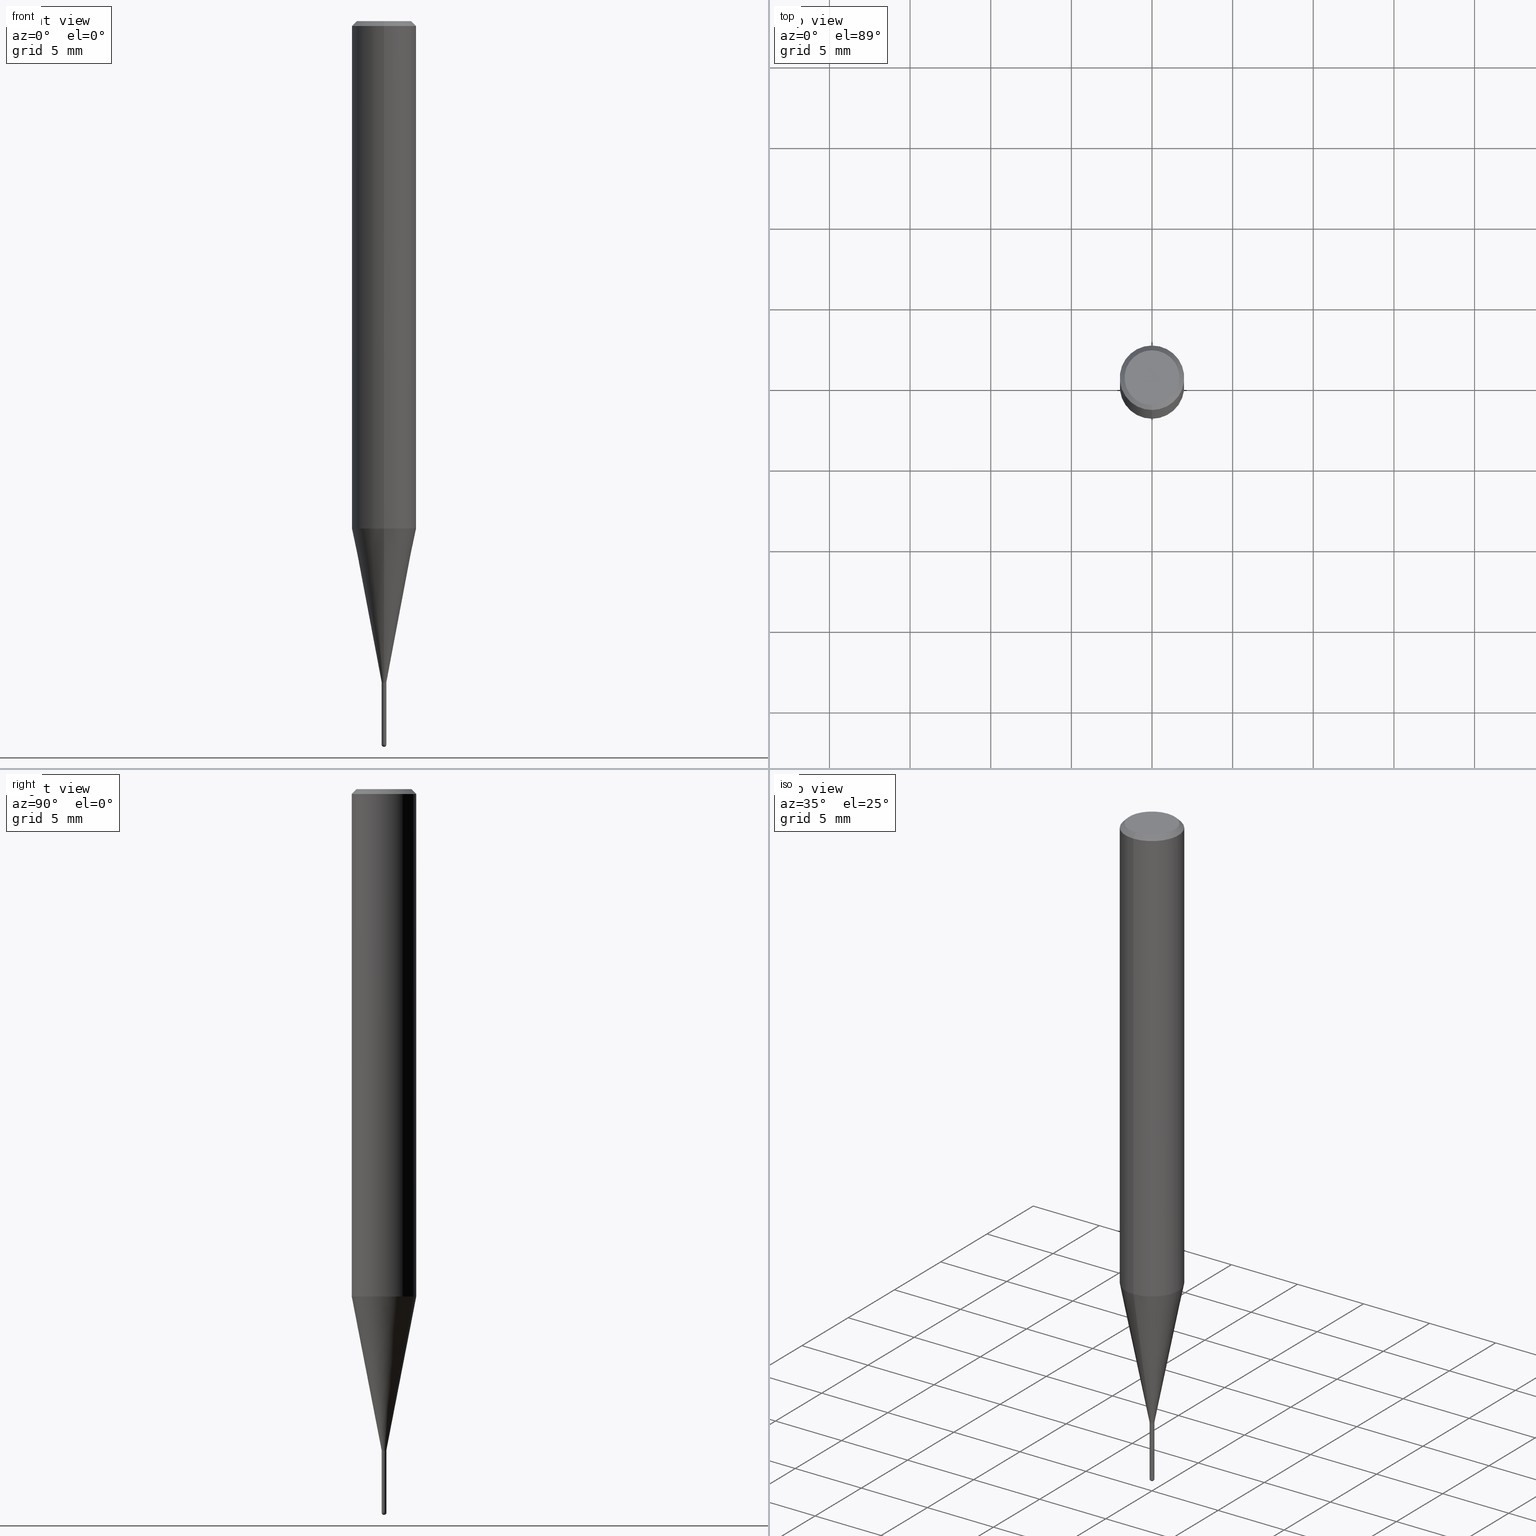
[diagram: canonical four-view strip — front | top / right | iso, engineering-drawing reading convention]
A machine part, canonical four-view strip (front | top / right | iso — engineering-drawing reading convention). The complete STEP part file that produces these views, byte-faithful:
ISO-10303-21;
HEADER;
FILE_DESCRIPTION(('no description'),'unknown implementation level');
FILE_NAME('CSELB2003-040-Huellk.stp','  ',('CIMSOURCE GmbH'),('CADClick - KiM GmbH - www.kimweb.de'),'unknown preprocess','ACIS','unknown authorization');
FILE_SCHEMA(('automotive_design'));
ENDSEC;
DATA;
#1=MECHANICAL_DESIGN_GEOMETRIC_PRESENTATION_REPRESENTATION(' ',(#14,#15,#16,#17,#18,#19,#20,#21,#22,#23,#24,#25,#26,#27,#28,#29,#30,#31,#32,#33,#34,#35,#36,#37,#38,#39,#40,#41,#42,#43,#44,#45,#46,#47,#48,#49,#50,#51,#52,#53,#54,#55,#56,#57,#58,#59,#60,#61,#62,#63,#64,#65,#66,#67,#68,#69,#70,#71,#72,#73,#74),#10);
#2=PRODUCT_DEFINITION_CONTEXT('',#75,'design');
#3=APPLICATION_PROTOCOL_DEFINITION('INTERNATIONAL STANDARD','automotive_design',1994,#75);
#4=PRODUCT_CATEGORY_RELATIONSHIP('NONE','NONE',#76,#77);
#5=SHAPE_DEFINITION_REPRESENTATION(#78,#79);
#6=PRODUCT_DEFINITION_CONTEXT('',#80,'design');
#7=APPLICATION_PROTOCOL_DEFINITION('INTERNATIONAL STANDARD','automotive_design',1994,#80);
#8=PRODUCT_CATEGORY_RELATIONSHIP('NONE','NONE',#81,#82);
#9=SHAPE_DEFINITION_REPRESENTATION(#83,#84);
#10= (GEOMETRIC_REPRESENTATION_CONTEXT(3)GLOBAL_UNCERTAINTY_ASSIGNED_CONTEXT((#87))GLOBAL_UNIT_ASSIGNED_CONTEXT((#89,#90,#91))REPRESENTATION_CONTEXT('NONE','WORKSPACE'));
#14=STYLED_ITEM('',(#93),#94);
#15=STYLED_ITEM('',(#95),#96);
#16=STYLED_ITEM('',(#97),#98);
#17=STYLED_ITEM('',(#99),#100);
#18=STYLED_ITEM('',(#101),#102);
#19=STYLED_ITEM('',(#103),#104);
#20=STYLED_ITEM('',(#105),#106);
#21=STYLED_ITEM('',(#107),#108);
#22=STYLED_ITEM('',(#109),#110);
#23=STYLED_ITEM('',(#111),#112);
#24=STYLED_ITEM('',(#113),#114);
#25=STYLED_ITEM('',(#115),#116);
#26=STYLED_ITEM('',(#117),#118);
#27=STYLED_ITEM('',(#119),#120);
#28=STYLED_ITEM('',(#121),#122);
#29=STYLED_ITEM('',(#123),#124);
#30=STYLED_ITEM('',(#125),#126);
#31=STYLED_ITEM('',(#127),#128);
#32=STYLED_ITEM('',(#129),#130);
#33=STYLED_ITEM('',(#131),#132);
#34=STYLED_ITEM('',(#133),#134);
#35=STYLED_ITEM('',(#135),#136);
#36=STYLED_ITEM('',(#137),#138);
#37=STYLED_ITEM('',(#139),#140);
#38=STYLED_ITEM('',(#141),#142);
#39=STYLED_ITEM('',(#143),#144);
#40=STYLED_ITEM('',(#145),#146);
#41=STYLED_ITEM('',(#147),#148);
#42=STYLED_ITEM('',(#149),#150);
#43=STYLED_ITEM('',(#151),#152);
#44=STYLED_ITEM('',(#153),#154);
#45=STYLED_ITEM('',(#155),#156);
#46=STYLED_ITEM('',(#157),#158);
#47=STYLED_ITEM('',(#159),#160);
#48=STYLED_ITEM('',(#161),#162);
#49=STYLED_ITEM('',(#163),#164);
#50=STYLED_ITEM('',(#165),#166);
#51=STYLED_ITEM('',(#167),#168);
#52=STYLED_ITEM('',(#169),#170);
#53=STYLED_ITEM('',(#171),#172);
#54=STYLED_ITEM('',(#173),#174);
#55=STYLED_ITEM('',(#175),#176);
#56=STYLED_ITEM('',(#177),#178);
#57=STYLED_ITEM('',(#179),#180);
#58=STYLED_ITEM('',(#181),#182);
#59=STYLED_ITEM('',(#183),#184);
#60=STYLED_ITEM('',(#185),#186);
#61=STYLED_ITEM('',(#187),#188);
#62=STYLED_ITEM('',(#189),#190);
#63=STYLED_ITEM('',(#191),#192);
#64=STYLED_ITEM('',(#193),#194);
#65=STYLED_ITEM('',(#195),#196);
#66=STYLED_ITEM('',(#197),#198);
#67=STYLED_ITEM('',(#199),#200);
#68=STYLED_ITEM('',(#201),#202);
#69=STYLED_ITEM('',(#203),#204);
#70=STYLED_ITEM('',(#205),#206);
#71=STYLED_ITEM('',(#207),#208);
#72=STYLED_ITEM('',(#209),#210);
#73=STYLED_ITEM('',(#211),#212);
#74=STYLED_ITEM('',(#213),#214);
#75=APPLICATION_CONTEXT(' ');
#76=PRODUCT_CATEGORY('part','NONE');
#77=PRODUCT_RELATED_PRODUCT_CATEGORY('detail',' ',(#215));
#78=PRODUCT_DEFINITION_SHAPE('NONE','NONE',#216);
#79=ADVANCED_BREP_SHAPE_REPRESENTATION('1',(#182,#217),#10);
#80=APPLICATION_CONTEXT(' ');
#81=PRODUCT_CATEGORY('part','NONE');
#82=PRODUCT_RELATED_PRODUCT_CATEGORY('detail',' ',(#218));
#83=PRODUCT_DEFINITION_SHAPE('NONE','NONE',#219);
#84=ADVANCED_BREP_SHAPE_REPRESENTATION('2',(#210,#220),#10);
#87=UNCERTAINTY_MEASURE_WITH_UNIT(LENGTH_MEASURE(1.0E-006),#89,'','');
#89= (CONVERSION_BASED_UNIT('MILLIMETRE',#223)LENGTH_UNIT()NAMED_UNIT(#226));
#90= (NAMED_UNIT(#228)PLANE_ANGLE_UNIT()SI_UNIT($,.RADIAN.));
#91= (NAMED_UNIT(#228)SOLID_ANGLE_UNIT()SI_UNIT($,.STERADIAN.));
#93=PRESENTATION_STYLE_ASSIGNMENT((#234));
#94=VERTEX_POINT('',#235);
#95=PRESENTATION_STYLE_ASSIGNMENT((#236));
#96=EDGE_CURVE('',#114,#148,#237,.T.);
#97=PRESENTATION_STYLE_ASSIGNMENT((#238));
#98=EDGE_CURVE('',#130,#148,#239,.T.);
#99=PRESENTATION_STYLE_ASSIGNMENT((#240));
#100=EDGE_CURVE('',#132,#186,#241,.T.);
#101=PRESENTATION_STYLE_ASSIGNMENT((#242));
#102=ADVANCED_FACE('',(#243),#244,.T.);
#103=PRESENTATION_STYLE_ASSIGNMENT((#245));
#104=EDGE_CURVE('',#198,#140,#246,.T.);
#105=PRESENTATION_STYLE_ASSIGNMENT((#247));
#106=VERTEX_POINT('',#248);
#107=PRESENTATION_STYLE_ASSIGNMENT((#249));
#108=ADVANCED_FACE('',(#250),#251,.T.);
#109=PRESENTATION_STYLE_ASSIGNMENT((#252));
#110=ADVANCED_FACE('',(#253,#254),#255,.T.);
#111=PRESENTATION_STYLE_ASSIGNMENT((#256));
#112=EDGE_CURVE('',#134,#184,#257,.T.);
#113=PRESENTATION_STYLE_ASSIGNMENT((#258));
#114=VERTEX_POINT('',#259);
#115=PRESENTATION_STYLE_ASSIGNMENT((#260));
#116=EDGE_CURVE('',#140,#198,#261,.T.);
#117=PRESENTATION_STYLE_ASSIGNMENT((#262));
#118=ADVANCED_FACE('',(#263),#264,.T.);
#119=PRESENTATION_STYLE_ASSIGNMENT((#265));
#120=EDGE_CURVE('',#114,#148,#266,.T.);
#121=PRESENTATION_STYLE_ASSIGNMENT((#267));
#122=EDGE_CURVE('',#148,#114,#268,.T.);
#123=PRESENTATION_STYLE_ASSIGNMENT((#269));
#124=ADVANCED_FACE('',(#270),#271,.T.);
#125=PRESENTATION_STYLE_ASSIGNMENT((#272));
#126=VERTEX_POINT('',#273);
#127=PRESENTATION_STYLE_ASSIGNMENT((#274));
#128=ADVANCED_FACE('',(#275),#276,.T.);
#129=PRESENTATION_STYLE_ASSIGNMENT((#277));
#130=VERTEX_POINT('',#278);
#131=PRESENTATION_STYLE_ASSIGNMENT((#279));
#132=VERTEX_POINT('',#280);
#133=PRESENTATION_STYLE_ASSIGNMENT((#281));
#134=VERTEX_POINT('',#282);
#135=PRESENTATION_STYLE_ASSIGNMENT((#283));
#136=EDGE_CURVE('',#126,#94,#284,.T.);
#137=PRESENTATION_STYLE_ASSIGNMENT((#285));
#138=EDGE_CURVE('',#146,#106,#286,.T.);
#139=PRESENTATION_STYLE_ASSIGNMENT((#287));
#140=VERTEX_POINT('',#288);
#141=PRESENTATION_STYLE_ASSIGNMENT((#289));
#142=EDGE_CURVE('',#194,#184,#290,.T.);
#143=PRESENTATION_STYLE_ASSIGNMENT((#291));
#144=EDGE_CURVE('',#106,#146,#292,.T.);
#145=PRESENTATION_STYLE_ASSIGNMENT((#293));
#146=VERTEX_POINT('',#294);
#147=PRESENTATION_STYLE_ASSIGNMENT((#295));
#148=VERTEX_POINT('',#296);
#149=PRESENTATION_STYLE_ASSIGNMENT((#297));
#150=EDGE_CURVE('',#186,#132,#298,.T.);
#151=PRESENTATION_STYLE_ASSIGNMENT((#299));
#152=EDGE_CURVE('',#140,#126,#300,.T.);
#153=PRESENTATION_STYLE_ASSIGNMENT((#301));
#154=EDGE_CURVE('',#126,#186,#302,.T.);
#155=PRESENTATION_STYLE_ASSIGNMENT((#303));
#156=ADVANCED_FACE('',(#304),#305,.T.);
#157=PRESENTATION_STYLE_ASSIGNMENT((#306));
#158=EDGE_CURVE('',#114,#188,#307,.T.);
#159=PRESENTATION_STYLE_ASSIGNMENT((#308));
#160=EDGE_CURVE('',#188,#130,#309,.T.);
#161=PRESENTATION_STYLE_ASSIGNMENT((#310));
#162=ADVANCED_FACE('',(#311),#312,.T.);
#163=PRESENTATION_STYLE_ASSIGNMENT((#313));
#164=EDGE_CURVE('',#130,#188,#314,.T.);
#165=PRESENTATION_STYLE_ASSIGNMENT((#315));
#166=EDGE_CURVE('',#94,#198,#316,.T.);
#167=PRESENTATION_STYLE_ASSIGNMENT((#317));
#168=ADVANCED_FACE('',(#318),#319,.T.);
#169=PRESENTATION_STYLE_ASSIGNMENT((#320));
#170=ADVANCED_FACE('',(#321),#322,.T.);
#171=PRESENTATION_STYLE_ASSIGNMENT((#323));
#172=ADVANCED_FACE('',(#324),#325,.T.);
#173=PRESENTATION_STYLE_ASSIGNMENT((#326));
#174=ADVANCED_FACE('',(#327),#328,.T.);
#175=PRESENTATION_STYLE_ASSIGNMENT((#329));
#176=EDGE_CURVE('',#202,#134,#330,.T.);
#177=PRESENTATION_STYLE_ASSIGNMENT((#331));
#178=EDGE_CURVE('',#194,#202,#332,.T.);
#179=PRESENTATION_STYLE_ASSIGNMENT((#333));
#180=EDGE_CURVE('',#184,#194,#334,.T.);
#181=PRESENTATION_STYLE_ASSIGNMENT((#335));
#182=MANIFOLD_SOLID_BREP('1',#336);
#183=PRESENTATION_STYLE_ASSIGNMENT((#337));
#184=VERTEX_POINT('',#338);
#185=PRESENTATION_STYLE_ASSIGNMENT((#339));
#186=VERTEX_POINT('',#340);
#187=PRESENTATION_STYLE_ASSIGNMENT((#341));
#188=VERTEX_POINT('',#342);
#189=PRESENTATION_STYLE_ASSIGNMENT((#343));
#190=ADVANCED_FACE('',(#344),#345,.T.);
#191=PRESENTATION_STYLE_ASSIGNMENT((#346));
#192=ADVANCED_FACE('',(#347),#348,.T.);
#193=PRESENTATION_STYLE_ASSIGNMENT((#349));
#194=VERTEX_POINT('',#350);
#195=PRESENTATION_STYLE_ASSIGNMENT((#351));
#196=EDGE_CURVE('',#202,#146,#352,.T.);
#197=PRESENTATION_STYLE_ASSIGNMENT((#353));
#198=VERTEX_POINT('',#354);
#199=PRESENTATION_STYLE_ASSIGNMENT((#355));
#200=EDGE_CURVE('',#94,#126,#356,.T.);
#201=PRESENTATION_STYLE_ASSIGNMENT((#357));
#202=VERTEX_POINT('',#358);
#203=PRESENTATION_STYLE_ASSIGNMENT((#359));
#204=EDGE_CURVE('',#134,#202,#360,.T.);
#205=PRESENTATION_STYLE_ASSIGNMENT((#361));
#206=ADVANCED_FACE('',(#362),#363,.T.);
#207=PRESENTATION_STYLE_ASSIGNMENT((#364));
#208=EDGE_CURVE('',#106,#134,#365,.T.);
#209=PRESENTATION_STYLE_ASSIGNMENT((#366));
#210=MANIFOLD_SOLID_BREP('2',#367);
#211=PRESENTATION_STYLE_ASSIGNMENT((#368));
#212=ADVANCED_FACE('',(#369),#370,.T.);
#213=PRESENTATION_STYLE_ASSIGNMENT((#371));
#214=EDGE_CURVE('',#132,#94,#372,.T.);
#215=PRODUCT('1','1','PART-1-DESC',(#373));
#216=PRODUCT_DEFINITION('NONE','NONE',#374,#2);
#217=AXIS2_PLACEMENT_3D('',#375,#376,#377);
#218=PRODUCT('2','2','PART-2-DESC',(#378));
#219=PRODUCT_DEFINITION('NONE','NONE',#379,#6);
#220=AXIS2_PLACEMENT_3D('',#380,#381,#382);
#223=LENGTH_MEASURE_WITH_UNIT(LENGTH_MEASURE(1.0),#383);
#226=DIMENSIONAL_EXPONENTS(1.0,0.0,0.0,0.0,0.0,0.0,0.0);
#228=DIMENSIONAL_EXPONENTS(0.0,0.0,0.0,0.0,0.0,0.0,0.0);
#234=POINT_STYLE(' ',#384,POSITIVE_LENGTH_MEASURE(1.0E-006),#385);
#235=CARTESIAN_POINT('',(0.0,0.14495,-41.0));
#236=CURVE_STYLE('',#386,POSITIVE_LENGTH_MEASURE(1.0E-006),#387);
#237=CIRCLE('',#388,0.15);
#238=CURVE_STYLE('',#389,POSITIVE_LENGTH_MEASURE(1.0E-006),#390);
#239=LINE('',#391,#392);
#240=CURVE_STYLE('',#393,POSITIVE_LENGTH_MEASURE(1.0E-006),#394);
#241=CIRCLE('',#395,1.99995);
#242=SURFACE_STYLE_USAGE(.BOTH.,#396);
#243=FACE_OUTER_BOUND('',#397,.T.);
#244=PLANE('',#398);
#245=CURVE_STYLE('',#399,POSITIVE_LENGTH_MEASURE(1.0E-006),#400);
#246=CIRCLE('',#401,0.14495);
#247=POINT_STYLE(' ',#402,POSITIVE_LENGTH_MEASURE(1.0E-006),#403);
#248=CARTESIAN_POINT('',(2.44921270764475E-016,-2.0,-31.457));
#249=SURFACE_STYLE_USAGE(.BOTH.,#404);
#250=FACE_OUTER_BOUND('',#405,.T.);
#251=CYLINDRICAL_SURFACE('',#406,0.14495);
#252=SURFACE_STYLE_USAGE(.BOTH.,#407);
#253=FACE_OUTER_BOUND('',#408,.T.);
#254=FACE_BOUND('',#409,.T.);
#255=PLANE('',#410);
#256=CURVE_STYLE('',#411,POSITIVE_LENGTH_MEASURE(1.0E-006),#412);
#257=LINE('',#413,#414);
#258=POINT_STYLE(' ',#415,POSITIVE_LENGTH_MEASURE(1.0E-006),#416);
#259=CARTESIAN_POINT('',(1.83690953073356E-017,-0.15,-44.85));
#260=CURVE_STYLE('',#417,POSITIVE_LENGTH_MEASURE(1.0E-006),#418);
#261=CIRCLE('',#419,0.14495);
#262=SURFACE_STYLE_USAGE(.BOTH.,#420);
#263=FACE_OUTER_BOUND('',#421,.T.);
#264=PLANE('',#422);
#265=CURVE_STYLE('',#423,POSITIVE_LENGTH_MEASURE(1.0E-006),#424);
#266=CIRCLE('',#425,0.15);
#267=CURVE_STYLE('',#426,POSITIVE_LENGTH_MEASURE(1.0E-006),#427);
#268=CIRCLE('',#428,0.15);
#269=SURFACE_STYLE_USAGE(.BOTH.,#429);
#270=FACE_OUTER_BOUND('',#430,.T.);
#271=CYLINDRICAL_SURFACE('',#431,2.0);
#272=POINT_STYLE(' ',#432,POSITIVE_LENGTH_MEASURE(1.0E-006),#433);
#273=CARTESIAN_POINT('',(1.77506690986554E-017,-0.14495,-41.0));
#274=SURFACE_STYLE_USAGE(.BOTH.,#434);
#275=FACE_OUTER_BOUND('',#435,.T.);
#276=CYLINDRICAL_SURFACE('',#436,0.14495);
#277=POINT_STYLE(' ',#437,POSITIVE_LENGTH_MEASURE(1.0E-006),#438);
#278=CARTESIAN_POINT('',(0.0,0.1499,-44.76));
#279=POINT_STYLE(' ',#439,POSITIVE_LENGTH_MEASURE(1.0E-006),#440);
#280=CARTESIAN_POINT('',(0.0,1.99995,-31.457));
#281=POINT_STYLE(' ',#441,POSITIVE_LENGTH_MEASURE(1.0E-006),#442);
#282=CARTESIAN_POINT('',(2.44921270764475E-016,-2.0,-0.300000000000001));
#283=CURVE_STYLE('',#443,POSITIVE_LENGTH_MEASURE(1.0E-006),#444);
#284=CIRCLE('',#445,0.14495);
#285=CURVE_STYLE('',#446,POSITIVE_LENGTH_MEASURE(1.0E-006),#447);
#286=CIRCLE('',#448,2.0);
#287=POINT_STYLE(' ',#449,POSITIVE_LENGTH_MEASURE(1.0E-006),#450);
#288=CARTESIAN_POINT('',(1.77506690986554E-017,-0.14495,-44.76));
#289=CURVE_STYLE('',#451,POSITIVE_LENGTH_MEASURE(1.0E-006),#452);
#290=CIRCLE('',#453,1.7);
#291=CURVE_STYLE('',#454,POSITIVE_LENGTH_MEASURE(1.0E-006),#455);
#292=CIRCLE('',#456,2.0);
#293=POINT_STYLE(' ',#457,POSITIVE_LENGTH_MEASURE(1.0E-006),#458);
#294=CARTESIAN_POINT('',(0.0,2.0,-31.457));
#295=POINT_STYLE(' ',#459,POSITIVE_LENGTH_MEASURE(1.0E-006),#460);
#296=CARTESIAN_POINT('',(0.0,0.15,-44.85));
#297=CURVE_STYLE('',#461,POSITIVE_LENGTH_MEASURE(1.0E-006),#462);
#298=CIRCLE('',#463,1.99995);
#299=CURVE_STYLE('',#464,POSITIVE_LENGTH_MEASURE(1.0E-006),#465);
#300=LINE('',#466,#467);
#301=CURVE_STYLE('',#468,POSITIVE_LENGTH_MEASURE(1.0E-006),#469);
#302=LINE('',#470,#471);
#303=SURFACE_STYLE_USAGE(.BOTH.,#472);
#304=FACE_OUTER_BOUND('',#473,.T.);
#305=CYLINDRICAL_SURFACE('',#474,2.0);
#306=CURVE_STYLE('',#475,POSITIVE_LENGTH_MEASURE(1.0E-006),#476);
#307=LINE('',#477,#478);
#308=CURVE_STYLE('',#479,POSITIVE_LENGTH_MEASURE(1.0E-006),#480);
#309=CIRCLE('',#481,0.1499);
#310=SURFACE_STYLE_USAGE(.BOTH.,#482);
#311=FACE_OUTER_BOUND('',#483,.T.);
#312=SPHERICAL_SURFACE('',#484,0.15);
#313=CURVE_STYLE('',#485,POSITIVE_LENGTH_MEASURE(1.0E-006),#486);
#314=CIRCLE('',#487,0.1499);
#315=CURVE_STYLE('',#488,POSITIVE_LENGTH_MEASURE(1.0E-006),#489);
#316=LINE('',#490,#491);
#317=SURFACE_STYLE_USAGE(.BOTH.,#492);
#318=FACE_OUTER_BOUND('',#493,.T.);
#319=PLANE('',#494);
#320=SURFACE_STYLE_USAGE(.BOTH.,#495);
#321=FACE_OUTER_BOUND('',#496,.T.);
#322=CONICAL_SURFACE('',#497,1.07245,0.19198911666217);
#323=SURFACE_STYLE_USAGE(.BOTH.,#498);
#324=FACE_OUTER_BOUND('',#499,.T.);
#325=CONICAL_SURFACE('',#500,1.85,0.785398163397447);
#326=SURFACE_STYLE_USAGE(.BOTH.,#501);
#327=FACE_OUTER_BOUND('',#502,.T.);
#328=CONICAL_SURFACE('',#503,1.85,0.785398163397447);
#329=CURVE_STYLE('',#504,POSITIVE_LENGTH_MEASURE(1.0E-006),#505);
#330=CIRCLE('',#506,2.0);
#331=CURVE_STYLE('',#507,POSITIVE_LENGTH_MEASURE(1.0E-006),#508);
#332=LINE('',#509,#510);
#333=CURVE_STYLE('',#511,POSITIVE_LENGTH_MEASURE(1.0E-006),#512);
#334=CIRCLE('',#513,1.7);
#335=SURFACE_STYLE_USAGE(.BOTH.,#514);
#336=CLOSED_SHELL('',(#128,#190,#124,#172,#110,#118,#174,#156,#170,#108,#168));
#337=POINT_STYLE(' ',#515,POSITIVE_LENGTH_MEASURE(1.0E-006),#516);
#338=CARTESIAN_POINT('',(2.08183080149804E-016,-1.7,0.0));
#339=POINT_STYLE(' ',#517,POSITIVE_LENGTH_MEASURE(1.0E-006),#518);
#340=CARTESIAN_POINT('',(2.44915147732706E-016,-1.99995,-31.457));
#341=POINT_STYLE(' ',#519,POSITIVE_LENGTH_MEASURE(1.0E-006),#520);
#342=CARTESIAN_POINT('',(1.83568492437974E-017,-0.1499,-44.76));
#343=SURFACE_STYLE_USAGE(.BOTH.,#521);
#344=FACE_OUTER_BOUND('',#522,.T.);
#345=CONICAL_SURFACE('',#523,1.07245,0.19198911666217);
#346=SURFACE_STYLE_USAGE(.BOTH.,#524);
#347=FACE_OUTER_BOUND('',#525,.T.);
#348=CONICAL_SURFACE('',#526,0.14995,0.00111111065386396);
#349=POINT_STYLE(' ',#527,POSITIVE_LENGTH_MEASURE(1.0E-006),#528);
#350=CARTESIAN_POINT('',(0.0,1.7,0.0));
#351=CURVE_STYLE('',#529,POSITIVE_LENGTH_MEASURE(1.0E-006),#530);
#352=LINE('',#531,#532);
#353=POINT_STYLE(' ',#533,POSITIVE_LENGTH_MEASURE(1.0E-006),#534);
#354=CARTESIAN_POINT('',(0.0,0.14495,-44.76));
#355=CURVE_STYLE('',#535,POSITIVE_LENGTH_MEASURE(1.0E-006),#536);
#356=CIRCLE('',#537,0.14495);
#357=POINT_STYLE(' ',#538,POSITIVE_LENGTH_MEASURE(1.0E-006),#539);
#358=CARTESIAN_POINT('',(0.0,2.0,-0.300000000000001));
#359=CURVE_STYLE('',#540,POSITIVE_LENGTH_MEASURE(1.0E-006),#541);
#360=CIRCLE('',#542,2.0);
#361=SURFACE_STYLE_USAGE(.BOTH.,#543);
#362=FACE_OUTER_BOUND('',#544,.T.);
#363=SPHERICAL_SURFACE('',#545,0.15);
#364=CURVE_STYLE('',#546,POSITIVE_LENGTH_MEASURE(1.0E-006),#547);
#365=LINE('',#548,#549);
#366=SURFACE_STYLE_USAGE(.BOTH.,#550);
#367=CLOSED_SHELL('',(#206,#192,#102,#212,#162));
#368=SURFACE_STYLE_USAGE(.BOTH.,#551);
#369=FACE_OUTER_BOUND('',#552,.T.);
#370=CONICAL_SURFACE('',#553,0.14995,0.00111111065386396);
#371=CURVE_STYLE('',#554,POSITIVE_LENGTH_MEASURE(1.0E-006),#555);
#372=LINE('',#556,#557);
#373=PRODUCT_CONTEXT('',#75,'mechanical');
#374=PRODUCT_DEFINITION_FORMATION_WITH_SPECIFIED_SOURCE(' ','NONE',#215,.NOT_KNOWN.);
#375=CARTESIAN_POINT('',(0.0,0.0,0.0));
#376=DIRECTION('',(0.0,0.0,1.0));
#377=DIRECTION('',(1.0,0.0,0.0));
#378=PRODUCT_CONTEXT('',#80,'mechanical');
#379=PRODUCT_DEFINITION_FORMATION_WITH_SPECIFIED_SOURCE(' ','NONE',#218,.NOT_KNOWN.);
#380=CARTESIAN_POINT('',(0.0,0.0,0.0));
#381=DIRECTION('',(0.0,0.0,1.0));
#382=DIRECTION('',(1.0,0.0,0.0));
#383= (NAMED_UNIT(#226)LENGTH_UNIT()SI_UNIT(.MILLI.,.METRE.));
#384=PRE_DEFINED_MARKER('');
#385=COLOUR_RGB('',0.498039215803146,0.498039215803146,0.498039215803146);
#386=DRAUGHTING_PRE_DEFINED_CURVE_FONT('continuous');
#387=COLOUR_RGB('',0.800000011920929,0.800000011920929,0.800000011920929);
#388=AXIS2_PLACEMENT_3D('',#559,#560,#561);
#389=DRAUGHTING_PRE_DEFINED_CURVE_FONT('continuous');
#390=COLOUR_RGB('',0.800000011920929,0.800000011920929,0.800000011920929);
#391=CARTESIAN_POINT('',(-1.83629722755665E-017,0.14995,-44.805));
#392=VECTOR('',#562,1.0);
#393=DRAUGHTING_PRE_DEFINED_CURVE_FONT('continuous');
#394=COLOUR_RGB('',0.498039215803146,0.498039215803146,0.498039215803146);
#395=AXIS2_PLACEMENT_3D('',#563,#564,#565);
#396=SURFACE_SIDE_STYLE('',(#566));
#397=EDGE_LOOP('',(#567,#568));
#398=AXIS2_PLACEMENT_3D('',#569,#570,#571);
#399=DRAUGHTING_PRE_DEFINED_CURVE_FONT('continuous');
#400=COLOUR_RGB('',0.498039215803146,0.498039215803146,0.498039215803146);
#401=AXIS2_PLACEMENT_3D('',#572,#573,#574);
#402=PRE_DEFINED_MARKER('');
#403=COLOUR_RGB('',0.498039215803146,0.498039215803146,0.498039215803146);
#404=SURFACE_SIDE_STYLE('',(#575));
#405=EDGE_LOOP('',(#576,#577,#578,#579));
#406=AXIS2_PLACEMENT_3D('',#580,#581,#582);
#407=SURFACE_SIDE_STYLE('',(#583));
#408=EDGE_LOOP('',(#584,#585));
#409=EDGE_LOOP('',(#586,#587));
#410=AXIS2_PLACEMENT_3D('',#588,#589,#590);
#411=DRAUGHTING_PRE_DEFINED_CURVE_FONT('continuous');
#412=COLOUR_RGB('',0.498039215803146,0.498039215803146,0.498039215803146);
#413=CARTESIAN_POINT('',(2.2655217545714E-016,-1.85,-0.149999999999999));
#414=VECTOR('',#591,1.0);
#415=PRE_DEFINED_MARKER('');
#416=COLOUR_RGB('',0.800000011920929,0.800000011920929,0.800000011920929);
#417=DRAUGHTING_PRE_DEFINED_CURVE_FONT('continuous');
#418=COLOUR_RGB('',0.498039215803146,0.498039215803146,0.498039215803146);
#419=AXIS2_PLACEMENT_3D('',#592,#593,#594);
#420=SURFACE_SIDE_STYLE('',(#595));
#421=EDGE_LOOP('',(#596,#597));
#422=AXIS2_PLACEMENT_3D('',#598,#599,#600);
#423=DRAUGHTING_PRE_DEFINED_CURVE_FONT('continuous');
#424=COLOUR_RGB('',0.800000011920929,0.800000011920929,0.800000011920929);
#425=AXIS2_PLACEMENT_3D('',#601,#602,#603);
#426=DRAUGHTING_PRE_DEFINED_CURVE_FONT('continuous');
#427=COLOUR_RGB('',0.800000011920929,0.800000011920929,0.800000011920929);
#428=AXIS2_PLACEMENT_3D('',#604,#605,#606);
#429=SURFACE_SIDE_STYLE('',(#607));
#430=EDGE_LOOP('',(#608,#609,#610,#611));
#431=AXIS2_PLACEMENT_3D('',#612,#613,#614);
#432=PRE_DEFINED_MARKER('');
#433=COLOUR_RGB('',0.498039215803146,0.498039215803146,0.498039215803146);
#434=SURFACE_SIDE_STYLE('',(#615));
#435=EDGE_LOOP('',(#616,#617,#618,#619));
#436=AXIS2_PLACEMENT_3D('',#620,#621,#622);
#437=PRE_DEFINED_MARKER('');
#438=COLOUR_RGB('',0.800000011920929,0.800000011920929,0.800000011920929);
#439=PRE_DEFINED_MARKER('');
#440=COLOUR_RGB('',0.498039215803146,0.498039215803146,0.498039215803146);
#441=PRE_DEFINED_MARKER('');
#442=COLOUR_RGB('',0.498039215803146,0.498039215803146,0.498039215803146);
#443=DRAUGHTING_PRE_DEFINED_CURVE_FONT('continuous');
#444=COLOUR_RGB('',0.498039215803146,0.498039215803146,0.498039215803146);
#445=AXIS2_PLACEMENT_3D('',#623,#624,#625);
#446=DRAUGHTING_PRE_DEFINED_CURVE_FONT('continuous');
#447=COLOUR_RGB('',0.498039215803146,0.498039215803146,0.498039215803146);
#448=AXIS2_PLACEMENT_3D('',#626,#627,#628);
#449=PRE_DEFINED_MARKER('');
#450=COLOUR_RGB('',0.498039215803146,0.498039215803146,0.498039215803146);
#451=DRAUGHTING_PRE_DEFINED_CURVE_FONT('continuous');
#452=COLOUR_RGB('',0.498039215803146,0.498039215803146,0.498039215803146);
#453=AXIS2_PLACEMENT_3D('',#629,#630,#631);
#454=DRAUGHTING_PRE_DEFINED_CURVE_FONT('continuous');
#455=COLOUR_RGB('',0.498039215803146,0.498039215803146,0.498039215803146);
#456=AXIS2_PLACEMENT_3D('',#632,#633,#634);
#457=PRE_DEFINED_MARKER('');
#458=COLOUR_RGB('',0.498039215803146,0.498039215803146,0.498039215803146);
#459=PRE_DEFINED_MARKER('');
#460=COLOUR_RGB('',0.800000011920929,0.800000011920929,0.800000011920929);
#461=DRAUGHTING_PRE_DEFINED_CURVE_FONT('continuous');
#462=COLOUR_RGB('',0.498039215803146,0.498039215803146,0.498039215803146);
#463=AXIS2_PLACEMENT_3D('',#635,#636,#637);
#464=DRAUGHTING_PRE_DEFINED_CURVE_FONT('continuous');
#465=COLOUR_RGB('',0.498039215803146,0.498039215803146,0.498039215803146);
#466=CARTESIAN_POINT('',(1.77506690986554E-017,-0.14495,-42.88));
#467=VECTOR('',#638,1.0);
#468=DRAUGHTING_PRE_DEFINED_CURVE_FONT('continuous');
#469=COLOUR_RGB('',0.498039215803146,0.498039215803146,0.498039215803146);
#470=CARTESIAN_POINT('',(1.31332908415681E-016,-1.07245,-36.2285));
#471=VECTOR('',#639,1.0);
#472=SURFACE_SIDE_STYLE('',(#640));
#473=EDGE_LOOP('',(#641,#642,#643,#644));
#474=AXIS2_PLACEMENT_3D('',#645,#646,#647);
#475=DRAUGHTING_PRE_DEFINED_CURVE_FONT('continuous');
#476=COLOUR_RGB('',0.800000011920929,0.800000011920929,0.800000011920929);
#477=CARTESIAN_POINT('',(1.83629722755665E-017,-0.14995,-44.805));
#478=VECTOR('',#648,1.0);
#479=DRAUGHTING_PRE_DEFINED_CURVE_FONT('continuous');
#480=COLOUR_RGB('',0.800000011920929,0.800000011920929,0.800000011920929);
#481=AXIS2_PLACEMENT_3D('',#649,#650,#651);
#482=SURFACE_SIDE_STYLE('',(#652));
#483=EDGE_LOOP('',(#653,#654));
#484=AXIS2_PLACEMENT_3D('',#655,#656,#657);
#485=DRAUGHTING_PRE_DEFINED_CURVE_FONT('continuous');
#486=COLOUR_RGB('',0.800000011920929,0.800000011920929,0.800000011920929);
#487=AXIS2_PLACEMENT_3D('',#658,#659,#660);
#488=DRAUGHTING_PRE_DEFINED_CURVE_FONT('continuous');
#489=COLOUR_RGB('',0.498039215803146,0.498039215803146,0.498039215803146);
#490=CARTESIAN_POINT('',(-1.77506690986554E-017,0.14495,-42.88));
#491=VECTOR('',#661,1.0);
#492=SURFACE_SIDE_STYLE('',(#662));
#493=EDGE_LOOP('',(#663,#664));
#494=AXIS2_PLACEMENT_3D('',#665,#666,#667);
#495=SURFACE_SIDE_STYLE('',(#668));
#496=EDGE_LOOP('',(#669,#670,#671,#672));
#497=AXIS2_PLACEMENT_3D('',#673,#674,#675);
#498=SURFACE_SIDE_STYLE('',(#676));
#499=EDGE_LOOP('',(#677,#678,#679,#680));
#500=AXIS2_PLACEMENT_3D('',#681,#682,#683);
#501=SURFACE_SIDE_STYLE('',(#684));
#502=EDGE_LOOP('',(#685,#686,#687,#688));
#503=AXIS2_PLACEMENT_3D('',#689,#690,#691);
#504=DRAUGHTING_PRE_DEFINED_CURVE_FONT('continuous');
#505=COLOUR_RGB('',0.498039215803146,0.498039215803146,0.498039215803146);
#506=AXIS2_PLACEMENT_3D('',#692,#693,#694);
#507=DRAUGHTING_PRE_DEFINED_CURVE_FONT('continuous');
#508=COLOUR_RGB('',0.498039215803146,0.498039215803146,0.498039215803146);
#509=CARTESIAN_POINT('',(-2.2655217545714E-016,1.85,-0.149999999999999));
#510=VECTOR('',#695,1.0);
#511=DRAUGHTING_PRE_DEFINED_CURVE_FONT('continuous');
#512=COLOUR_RGB('',0.498039215803146,0.498039215803146,0.498039215803146);
#513=AXIS2_PLACEMENT_3D('',#696,#697,#698);
#514=SURFACE_SIDE_STYLE('',(#699));
#515=PRE_DEFINED_MARKER('');
#516=COLOUR_RGB('',0.498039215803146,0.498039215803146,0.498039215803146);
#517=PRE_DEFINED_MARKER('');
#518=COLOUR_RGB('',0.498039215803146,0.498039215803146,0.498039215803146);
#519=PRE_DEFINED_MARKER('');
#520=COLOUR_RGB('',0.800000011920929,0.800000011920929,0.800000011920929);
#521=SURFACE_SIDE_STYLE('',(#700));
#522=EDGE_LOOP('',(#701,#702,#703,#704));
#523=AXIS2_PLACEMENT_3D('',#705,#706,#707);
#524=SURFACE_SIDE_STYLE('',(#708));
#525=EDGE_LOOP('',(#709,#710,#711,#712));
#526=AXIS2_PLACEMENT_3D('',#713,#714,#715);
#527=PRE_DEFINED_MARKER('');
#528=COLOUR_RGB('',0.498039215803146,0.498039215803146,0.498039215803146);
#529=DRAUGHTING_PRE_DEFINED_CURVE_FONT('continuous');
#530=COLOUR_RGB('',0.498039215803146,0.498039215803146,0.498039215803146);
#531=CARTESIAN_POINT('',(-2.44921270764475E-016,2.0,-15.8785));
#532=VECTOR('',#716,1.0);
#533=PRE_DEFINED_MARKER('');
#534=COLOUR_RGB('',0.498039215803146,0.498039215803146,0.498039215803146);
#535=DRAUGHTING_PRE_DEFINED_CURVE_FONT('continuous');
#536=COLOUR_RGB('',0.498039215803146,0.498039215803146,0.498039215803146);
#537=AXIS2_PLACEMENT_3D('',#717,#718,#719);
#538=PRE_DEFINED_MARKER('');
#539=COLOUR_RGB('',0.498039215803146,0.498039215803146,0.498039215803146);
#540=DRAUGHTING_PRE_DEFINED_CURVE_FONT('continuous');
#541=COLOUR_RGB('',0.498039215803146,0.498039215803146,0.498039215803146);
#542=AXIS2_PLACEMENT_3D('',#720,#721,#722);
#543=SURFACE_SIDE_STYLE('',(#723));
#544=EDGE_LOOP('',(#724,#725));
#545=AXIS2_PLACEMENT_3D('',#726,#727,#728);
#546=DRAUGHTING_PRE_DEFINED_CURVE_FONT('continuous');
#547=COLOUR_RGB('',0.498039215803146,0.498039215803146,0.498039215803146);
#548=CARTESIAN_POINT('',(2.44921270764475E-016,-2.0,-15.8785));
#549=VECTOR('',#729,1.0);
#550=SURFACE_SIDE_STYLE('',(#730));
#551=SURFACE_SIDE_STYLE('',(#731));
#552=EDGE_LOOP('',(#732,#733,#734,#735));
#553=AXIS2_PLACEMENT_3D('',#736,#737,#738);
#554=DRAUGHTING_PRE_DEFINED_CURVE_FONT('continuous');
#555=COLOUR_RGB('',0.498039215803146,0.498039215803146,0.498039215803146);
#556=CARTESIAN_POINT('',(-1.31332908415681E-016,1.07245,-36.2285));
#557=VECTOR('',#739,1.0);
#559=CARTESIAN_POINT('',(0.0,0.0,-44.85));
#560=DIRECTION('',(1.0,0.0,1.22460635382239E-016));
#561=DIRECTION('',(-1.22460635382239E-016,0.0,1.0));
#562=DIRECTION('',(-1.36067288654788E-019,0.00111111042524057,-0.999999382716621));
#563=CARTESIAN_POINT('',(0.0,0.0,-31.457));
#564=DIRECTION('',(0.0,0.0,-1.0));
#565=DIRECTION('',(0.0,1.0,0.0));
#566=SURFACE_STYLE_FILL_AREA(#740);
#567=ORIENTED_EDGE('',*,*,#164,.F.);
#568=ORIENTED_EDGE('',*,*,#160,.F.);
#569=CARTESIAN_POINT('',(0.0,0.07495,-44.76));
#570=DIRECTION('',(-0.0,0.0,1.0));
#571=DIRECTION('',(0.0,-1.0,0.0));
#572=CARTESIAN_POINT('',(0.0,0.0,-44.76));
#573=DIRECTION('',(0.0,0.0,-1.0));
#574=DIRECTION('',(0.0,1.0,0.0));
#575=SURFACE_STYLE_FILL_AREA(#741);
#576=ORIENTED_EDGE('',*,*,#166,.T.);
#577=ORIENTED_EDGE('',*,*,#116,.F.);
#578=ORIENTED_EDGE('',*,*,#152,.T.);
#579=ORIENTED_EDGE('',*,*,#136,.T.);
#580=CARTESIAN_POINT('',(0.0,0.0,-42.88));
#581=DIRECTION('',(-0.0,-0.0,1.0));
#582=DIRECTION('',(0.0,1.0,0.0));
#583=SURFACE_STYLE_FILL_AREA(#742);
#584=ORIENTED_EDGE('',*,*,#138,.T.);
#585=ORIENTED_EDGE('',*,*,#144,.T.);
#586=ORIENTED_EDGE('',*,*,#100,.F.);
#587=ORIENTED_EDGE('',*,*,#150,.F.);
#588=CARTESIAN_POINT('',(0.0,1.0,-31.457));
#589=DIRECTION('',(0.0,0.0,-1.0));
#590=DIRECTION('',(0.0,1.0,0.0));
#591=DIRECTION('',(-8.65927457071934E-017,0.707106781186546,0.707106781186549));
#592=CARTESIAN_POINT('',(0.0,0.0,-44.76));
#593=DIRECTION('',(0.0,0.0,-1.0));
#594=DIRECTION('',(0.0,1.0,0.0));
#595=SURFACE_STYLE_FILL_AREA(#743);
#596=ORIENTED_EDGE('',*,*,#142,.F.);
#597=ORIENTED_EDGE('',*,*,#180,.F.);
#598=CARTESIAN_POINT('',(0.0,0.85,0.0));
#599=DIRECTION('',(-0.0,0.0,1.0));
#600=DIRECTION('',(0.0,-1.0,0.0));
#601=CARTESIAN_POINT('',(0.0,0.0,-44.85));
#602=DIRECTION('',(0.0,0.0,-1.0));
#603=DIRECTION('',(0.0,1.0,0.0));
#604=CARTESIAN_POINT('',(0.0,0.0,-44.85));
#605=DIRECTION('',(0.0,0.0,-1.0));
#606=DIRECTION('',(0.0,1.0,0.0));
#607=SURFACE_STYLE_FILL_AREA(#744);
#608=ORIENTED_EDGE('',*,*,#196,.F.);
#609=ORIENTED_EDGE('',*,*,#176,.T.);
#610=ORIENTED_EDGE('',*,*,#208,.F.);
#611=ORIENTED_EDGE('',*,*,#138,.F.);
#612=CARTESIAN_POINT('',(0.0,0.0,-15.8785));
#613=DIRECTION('',(-0.0,-0.0,1.0));
#614=DIRECTION('',(0.0,1.0,0.0));
#615=SURFACE_STYLE_FILL_AREA(#745);
#616=ORIENTED_EDGE('',*,*,#166,.F.);
#617=ORIENTED_EDGE('',*,*,#200,.T.);
#618=ORIENTED_EDGE('',*,*,#152,.F.);
#619=ORIENTED_EDGE('',*,*,#104,.F.);
#620=CARTESIAN_POINT('',(0.0,0.0,-42.88));
#621=DIRECTION('',(-0.0,-0.0,1.0));
#622=DIRECTION('',(0.0,1.0,0.0));
#623=CARTESIAN_POINT('',(0.0,0.0,-41.0));
#624=DIRECTION('',(0.0,0.0,-1.0));
#625=DIRECTION('',(0.0,1.0,0.0));
#626=CARTESIAN_POINT('',(0.0,0.0,-31.457));
#627=DIRECTION('',(0.0,0.0,-1.0));
#628=DIRECTION('',(0.0,1.0,0.0));
#629=CARTESIAN_POINT('',(0.0,0.0,0.0));
#630=DIRECTION('',(0.0,0.0,-1.0));
#631=DIRECTION('',(0.0,1.0,0.0));
#632=CARTESIAN_POINT('',(0.0,0.0,-31.457));
#633=DIRECTION('',(0.0,0.0,-1.0));
#634=DIRECTION('',(0.0,1.0,0.0));
#635=CARTESIAN_POINT('',(0.0,0.0,-31.457));
#636=DIRECTION('',(0.0,0.0,-1.0));
#637=DIRECTION('',(0.0,1.0,0.0));
#638=DIRECTION('',(-0.0,-0.0,1.0));
#639=DIRECTION('',(2.33669392942694E-017,-0.190811841056793,0.981626630299177));
#640=SURFACE_STYLE_FILL_AREA(#746);
#641=ORIENTED_EDGE('',*,*,#196,.T.);
#642=ORIENTED_EDGE('',*,*,#144,.F.);
#643=ORIENTED_EDGE('',*,*,#208,.T.);
#644=ORIENTED_EDGE('',*,*,#204,.T.);
#645=CARTESIAN_POINT('',(0.0,0.0,-15.8785));
#646=DIRECTION('',(-0.0,-0.0,1.0));
#647=DIRECTION('',(0.0,1.0,0.0));
#648=DIRECTION('',(-1.36067288654788E-019,0.00111111042524057,0.999999382716621));
#649=CARTESIAN_POINT('',(0.0,0.0,-44.76));
#650=DIRECTION('',(0.0,0.0,-1.0));
#651=DIRECTION('',(0.0,1.0,0.0));
#652=SURFACE_STYLE_FILL_AREA(#747);
#653=ORIENTED_EDGE('',*,*,#96,.T.);
#654=ORIENTED_EDGE('',*,*,#122,.T.);
#655=CARTESIAN_POINT('',(0.0,0.0,-44.85));
#656=DIRECTION('',(0.0,1.0,0.0));
#657=DIRECTION('',(0.0,0.0,-1.0));
#658=CARTESIAN_POINT('',(0.0,0.0,-44.76));
#659=DIRECTION('',(0.0,0.0,-1.0));
#660=DIRECTION('',(0.0,1.0,0.0));
#661=DIRECTION('',(0.0,0.0,-1.0));
#662=SURFACE_STYLE_FILL_AREA(#748);
#663=ORIENTED_EDGE('',*,*,#104,.T.);
#664=ORIENTED_EDGE('',*,*,#116,.T.);
#665=CARTESIAN_POINT('',(0.0,0.072475,-44.76));
#666=DIRECTION('',(0.0,0.0,-1.0));
#667=DIRECTION('',(0.0,1.0,0.0));
#668=SURFACE_STYLE_FILL_AREA(#749);
#669=ORIENTED_EDGE('',*,*,#214,.T.);
#670=ORIENTED_EDGE('',*,*,#136,.F.);
#671=ORIENTED_EDGE('',*,*,#154,.T.);
#672=ORIENTED_EDGE('',*,*,#150,.T.);
#673=CARTESIAN_POINT('',(0.0,0.0,-36.2285));
#674=DIRECTION('',(-0.0,-0.0,1.0));
#675=DIRECTION('',(0.0,1.0,0.0));
#676=SURFACE_STYLE_FILL_AREA(#750);
#677=ORIENTED_EDGE('',*,*,#178,.F.);
#678=ORIENTED_EDGE('',*,*,#142,.T.);
#679=ORIENTED_EDGE('',*,*,#112,.F.);
#680=ORIENTED_EDGE('',*,*,#176,.F.);
#681=CARTESIAN_POINT('',(0.0,0.0,-0.149999999999999));
#682=DIRECTION('',(0.0,-0.0,-1.0));
#683=DIRECTION('',(0.0,1.0,0.0));
#684=SURFACE_STYLE_FILL_AREA(#751);
#685=ORIENTED_EDGE('',*,*,#178,.T.);
#686=ORIENTED_EDGE('',*,*,#204,.F.);
#687=ORIENTED_EDGE('',*,*,#112,.T.);
#688=ORIENTED_EDGE('',*,*,#180,.T.);
#689=CARTESIAN_POINT('',(0.0,0.0,-0.149999999999999));
#690=DIRECTION('',(0.0,-0.0,-1.0));
#691=DIRECTION('',(0.0,1.0,0.0));
#692=CARTESIAN_POINT('',(0.0,0.0,-0.300000000000001));
#693=DIRECTION('',(0.0,0.0,-1.0));
#694=DIRECTION('',(0.0,1.0,0.0));
#695=DIRECTION('',(-8.65927457071934E-017,0.707106781186546,-0.707106781186549));
#696=CARTESIAN_POINT('',(0.0,0.0,0.0));
#697=DIRECTION('',(0.0,0.0,-1.0));
#698=DIRECTION('',(0.0,1.0,0.0));
#699=SURFACE_STYLE_FILL_AREA(#752);
#700=SURFACE_STYLE_FILL_AREA(#753);
#701=ORIENTED_EDGE('',*,*,#214,.F.);
#702=ORIENTED_EDGE('',*,*,#100,.T.);
#703=ORIENTED_EDGE('',*,*,#154,.F.);
#704=ORIENTED_EDGE('',*,*,#200,.F.);
#705=CARTESIAN_POINT('',(0.0,0.0,-36.2285));
#706=DIRECTION('',(-0.0,-0.0,1.0));
#707=DIRECTION('',(0.0,1.0,0.0));
#708=SURFACE_STYLE_FILL_AREA(#754);
#709=ORIENTED_EDGE('',*,*,#98,.F.);
#710=ORIENTED_EDGE('',*,*,#164,.T.);
#711=ORIENTED_EDGE('',*,*,#158,.F.);
#712=ORIENTED_EDGE('',*,*,#122,.F.);
#713=CARTESIAN_POINT('',(0.0,0.0,-44.805));
#714=DIRECTION('',(0.0,-0.0,-1.0));
#715=DIRECTION('',(0.0,1.0,0.0));
#716=DIRECTION('',(0.0,0.0,-1.0));
#717=CARTESIAN_POINT('',(0.0,0.0,-41.0));
#718=DIRECTION('',(0.0,0.0,-1.0));
#719=DIRECTION('',(0.0,1.0,0.0));
#720=CARTESIAN_POINT('',(0.0,0.0,-0.300000000000001));
#721=DIRECTION('',(0.0,0.0,-1.0));
#722=DIRECTION('',(0.0,1.0,0.0));
#723=SURFACE_STYLE_FILL_AREA(#755);
#724=ORIENTED_EDGE('',*,*,#96,.F.);
#725=ORIENTED_EDGE('',*,*,#120,.T.);
#726=CARTESIAN_POINT('',(0.0,0.0,-44.85));
#727=DIRECTION('',(0.0,1.0,0.0));
#728=DIRECTION('',(0.0,0.0,-1.0));
#729=DIRECTION('',(-0.0,-0.0,1.0));
#730=SURFACE_STYLE_FILL_AREA(#756);
#731=SURFACE_STYLE_FILL_AREA(#757);
#732=ORIENTED_EDGE('',*,*,#98,.T.);
#733=ORIENTED_EDGE('',*,*,#120,.F.);
#734=ORIENTED_EDGE('',*,*,#158,.T.);
#735=ORIENTED_EDGE('',*,*,#160,.T.);
#736=CARTESIAN_POINT('',(0.0,0.0,-44.805));
#737=DIRECTION('',(0.0,-0.0,-1.0));
#738=DIRECTION('',(0.0,1.0,0.0));
#739=DIRECTION('',(2.33669392942694E-017,-0.190811841056793,-0.981626630299177));
#740=FILL_AREA_STYLE('',(#758));
#741=FILL_AREA_STYLE('',(#759));
#742=FILL_AREA_STYLE('',(#760));
#743=FILL_AREA_STYLE('',(#761));
#744=FILL_AREA_STYLE('',(#762));
#745=FILL_AREA_STYLE('',(#763));
#746=FILL_AREA_STYLE('',(#764));
#747=FILL_AREA_STYLE('',(#765));
#748=FILL_AREA_STYLE('',(#766));
#749=FILL_AREA_STYLE('',(#767));
#750=FILL_AREA_STYLE('',(#768));
#751=FILL_AREA_STYLE('',(#769));
#752=FILL_AREA_STYLE('',(#770));
#753=FILL_AREA_STYLE('',(#771));
#754=FILL_AREA_STYLE('',(#772));
#755=FILL_AREA_STYLE('',(#773));
#756=FILL_AREA_STYLE('',(#774));
#757=FILL_AREA_STYLE('',(#775));
#758=FILL_AREA_STYLE_COLOUR('',#776);
#759=FILL_AREA_STYLE_COLOUR('',#777);
#760=FILL_AREA_STYLE_COLOUR('',#778);
#761=FILL_AREA_STYLE_COLOUR('',#779);
#762=FILL_AREA_STYLE_COLOUR('',#780);
#763=FILL_AREA_STYLE_COLOUR('',#781);
#764=FILL_AREA_STYLE_COLOUR('',#782);
#765=FILL_AREA_STYLE_COLOUR('',#783);
#766=FILL_AREA_STYLE_COLOUR('',#784);
#767=FILL_AREA_STYLE_COLOUR('',#785);
#768=FILL_AREA_STYLE_COLOUR('',#786);
#769=FILL_AREA_STYLE_COLOUR('',#787);
#770=FILL_AREA_STYLE_COLOUR('',#788);
#771=FILL_AREA_STYLE_COLOUR('',#789);
#772=FILL_AREA_STYLE_COLOUR('',#790);
#773=FILL_AREA_STYLE_COLOUR('',#791);
#774=FILL_AREA_STYLE_COLOUR('',#792);
#775=FILL_AREA_STYLE_COLOUR('',#793);
#776=COLOUR_RGB('',0.800000011920929,0.800000011920929,0.800000011920929);
#777=COLOUR_RGB('',0.498039215803146,0.498039215803146,0.498039215803146);
#778=COLOUR_RGB('',0.498039215803146,0.498039215803146,0.498039215803146);
#779=COLOUR_RGB('',0.498039215803146,0.498039215803146,0.498039215803146);
#780=COLOUR_RGB('',0.498039215803146,0.498039215803146,0.498039215803146);
#781=COLOUR_RGB('',0.498039215803146,0.498039215803146,0.498039215803146);
#782=COLOUR_RGB('',0.498039215803146,0.498039215803146,0.498039215803146);
#783=COLOUR_RGB('',0.800000011920929,0.800000011920929,0.800000011920929);
#784=COLOUR_RGB('',0.498039215803146,0.498039215803146,0.498039215803146);
#785=COLOUR_RGB('',0.498039215803146,0.498039215803146,0.498039215803146);
#786=COLOUR_RGB('',0.498039215803146,0.498039215803146,0.498039215803146);
#787=COLOUR_RGB('',0.498039215803146,0.498039215803146,0.498039215803146);
#788=COLOUR_RGB('',0.498039215803146,0.498039215803146,0.498039215803146);
#789=COLOUR_RGB('',0.498039215803146,0.498039215803146,0.498039215803146);
#790=COLOUR_RGB('',0.800000011920929,0.800000011920929,0.800000011920929);
#791=COLOUR_RGB('',0.800000011920929,0.800000011920929,0.800000011920929);
#792=COLOUR_RGB('',0.800000011920929,0.800000011920929,0.800000011920929);
#793=COLOUR_RGB('',0.800000011920929,0.800000011920929,0.800000011920929);
#794=AXIS2_PLACEMENT_3D('PCS',#795,#796,#797);
#795=CARTESIAN_POINT('',(0.0,0.0,0.0));
#796=DIRECTION('',(0.0,0.0,1.0));
#797=DIRECTION('',(1.0,0.0,0.0));
#798=AXIS2_PLACEMENT_3D('CIP',#799,#800,#801);
#799=CARTESIAN_POINT('',(0.0,0.0,-45.0));
#800=DIRECTION('',(0.0,0.0,1.0));
#801=DIRECTION('',(1.0,0.0,0.0));
#802=AXIS2_PLACEMENT_3D('CRP',#803,#804,#805);
#803=CARTESIAN_POINT('',(-0.15,0.0,-45.0));
#804=DIRECTION('',(0.0,0.0,1.0));
#805=DIRECTION('',(1.0,0.0,0.0));
#806=AXIS2_PLACEMENT_3D('MCS',#807,#808,#809);
#807=CARTESIAN_POINT('',(0.0,0.0,-31.457));
#808=DIRECTION('',(0.0,0.0,1.0));
#809=DIRECTION('',(1.0,0.0,0.0));
#810=CONSTRUCTIVE_GEOMETRY_REPRESENTATION_RELATIONSHIP('coordinate systems',$,#79,#811);
#811=CONSTRUCTIVE_GEOMETRY_REPRESENTATION('coordinate systems',(#794,#798,#802,#806),#10);
ENDSEC;
END-ISO-10303-21;
